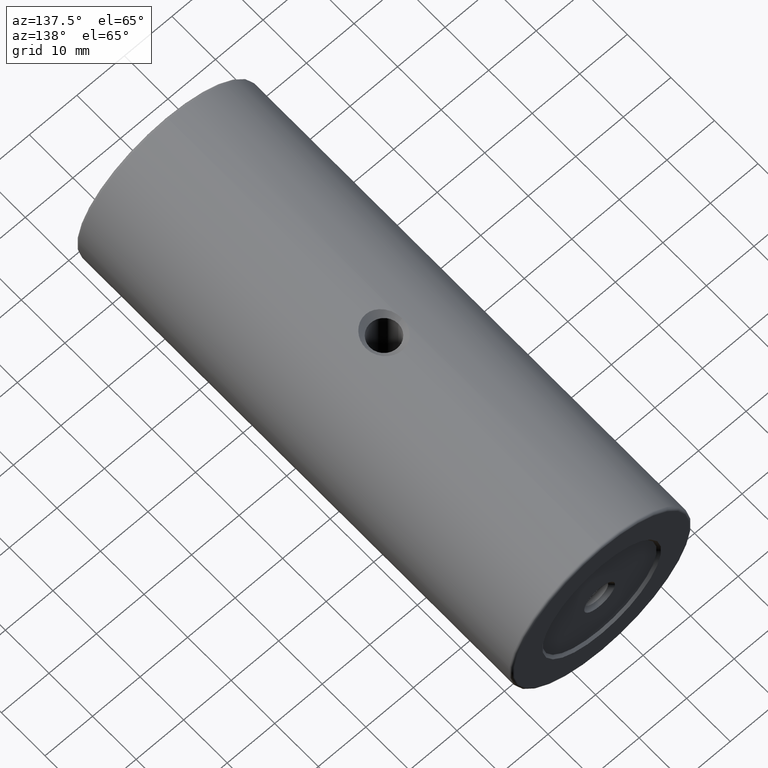
[diagram: clean part render]
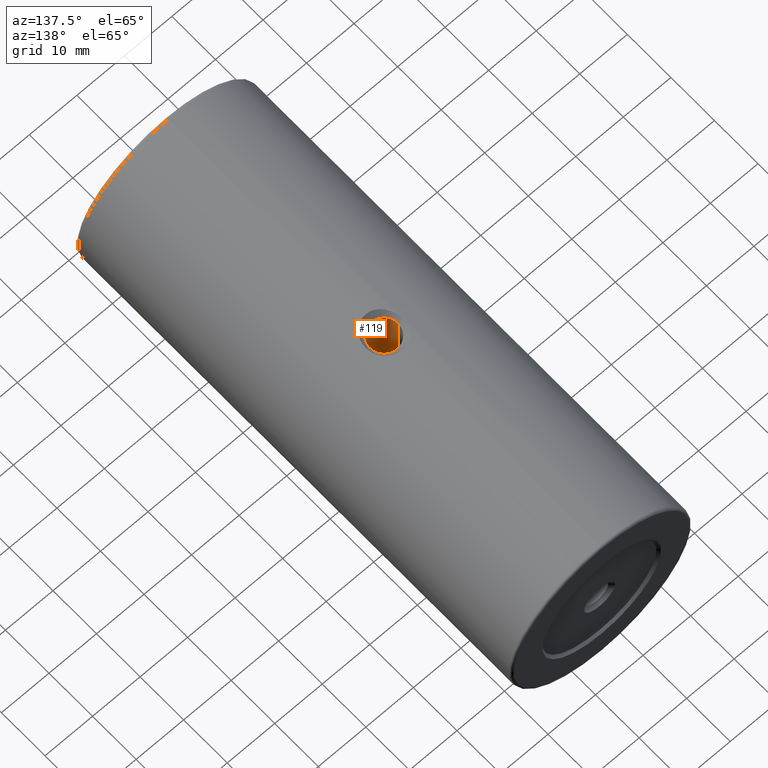
[diagram: same view with one face highlighted and labeled with its STEP entity id]
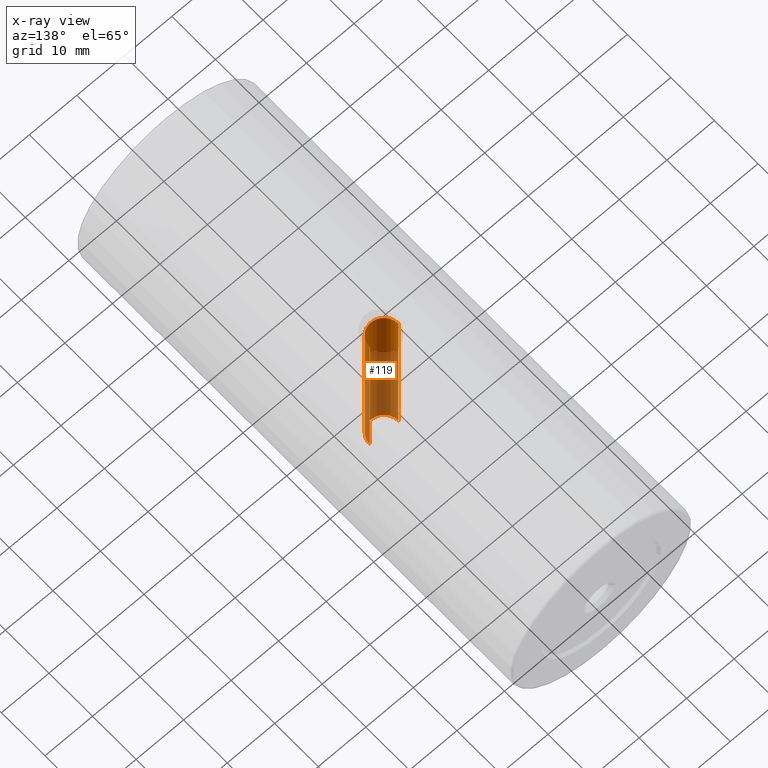
[diagram: x-ray of the same camera — body ghosted, the highlighted face saturated]
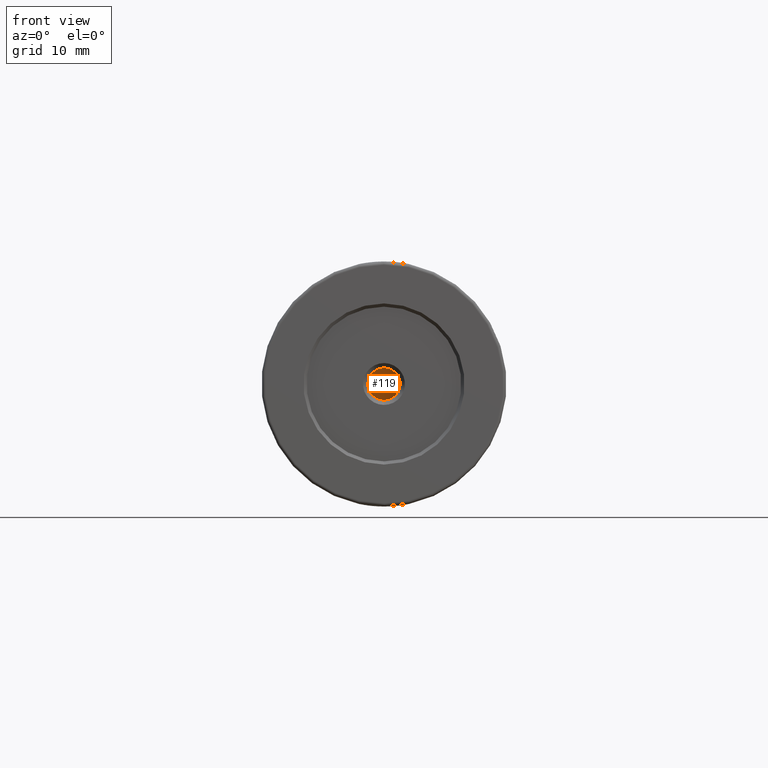
[diagram: same view with one face highlighted and labeled with its STEP entity id]
A machine part, auxiliary view. The second image highlights one B-rep face of the part: STEP entity #119.
The next image is the same camera in x-ray: the body ghosted, the highlighted face saturated — about 66% of this face is hidden behind the body in this view.
A second angle (front view) of the same face is appended — the face is thin or edge-on in the first view.
In plain terms, the highlighted cylindrical surface (edge-blend (fillet) strip) has radius 3 mm, axis along (-0, -0, 1).
Its self-contained STEP definition (entity closure, byte-faithful):
#5 = AXIS2_PLACEMENT_3D ( 'NONE', #973, #990, #198 ) ;
#6 = CARTESIAN_POINT ( 'NONE',  ( -88.22679983354142053, -4.261339991674281791, 381.0000000000000000 ) ) ;
#42 = EDGE_CURVE ( 'NONE', #682, #792, #66, .T. ) ;
#50 = ORIENTED_EDGE ( 'NONE', *, *, #42, .F. ) ;
#51 = EDGE_CURVE ( 'NONE', #792, #568, #451, .T. ) ;
#66 = LINE ( 'NONE', #613, #801 ) ;
#119 = ADVANCED_FACE ( 'NONE', ( #631 ), #939, .F. ) ;
#147 = CARTESIAN_POINT ( 'NONE',  ( -88.22679983354142053, -4.261339991674283567, 417.8000000000000114 ) ) ;
#168 = EDGE_CURVE ( 'NONE', #271, #568, #407, .T. ) ;
#186 = CIRCLE ( 'NONE', #5, 3.000000000000002665 ) ;
#198 = DIRECTION ( 'NONE',  ( -1.000000000000000000, 0.0000000000000000000, 0.0000000000000000000 ) ) ;
#246 = DIRECTION ( 'NONE',  ( 1.000000000000000000, 0.0000000000000000000, 0.0000000000000000000 ) ) ;
#258 = DIRECTION ( 'NONE',  ( -0.0000000000000000000, -0.0000000000000000000, 1.000000000000000000 ) ) ;
#271 = VERTEX_POINT ( 'NONE', #629 ) ;
#385 = DIRECTION ( 'NONE',  ( 1.000000000000000000, 0.0000000000000000000, 0.0000000000000000000 ) ) ;
#386 = VECTOR ( 'NONE', #258, 1000.000000000000000 ) ;
#407 = LINE ( 'NONE', #6, #386 ) ;
#414 = DIRECTION ( 'NONE',  ( -0.0000000000000000000, -0.0000000000000000000, 1.000000000000000000 ) ) ;
#451 = CIRCLE ( 'NONE', #659, 3.000000000000002665 ) ;
#459 = EDGE_CURVE ( 'NONE', #682, #271, #186, .T. ) ;
#513 = ORIENTED_EDGE ( 'NONE', *, *, #51, .F. ) ;
#568 = VERTEX_POINT ( 'NONE', #147 ) ;
#593 = ORIENTED_EDGE ( 'NONE', *, *, #459, .T. ) ;
#613 = CARTESIAN_POINT ( 'NONE',  ( -82.22679983354142053, -4.261339991674281791, 381.0000000000000000 ) ) ;
#629 = CARTESIAN_POINT ( 'NONE',  ( -88.22679983354142053, -4.261339991674281791, 382.2000000000000455 ) ) ;
#631 = FACE_OUTER_BOUND ( 'NONE', #796, .T. ) ;
#659 = AXIS2_PLACEMENT_3D ( 'NONE', #928, #1011, #385 ) ;
#682 = VERTEX_POINT ( 'NONE', #944 ) ;
#724 = ORIENTED_EDGE ( 'NONE', *, *, #168, .T. ) ;
#768 = DIRECTION ( 'NONE',  ( -0.0000000000000000000, -0.0000000000000000000, 1.000000000000000000 ) ) ;
#792 = VERTEX_POINT ( 'NONE', #960 ) ;
#796 = EDGE_LOOP ( 'NONE', ( #593, #724, #513, #50 ) ) ;
#801 = VECTOR ( 'NONE', #768, 1000.000000000000000 ) ;
#906 = AXIS2_PLACEMENT_3D ( 'NONE', #1002, #414, #246 ) ;
#928 = CARTESIAN_POINT ( 'NONE',  ( -85.22679983354142053, -4.261339991674283567, 417.8000000000000114 ) ) ;
#939 = CYLINDRICAL_SURFACE ( 'NONE', #906, 3.000000000000002665 ) ;
#944 = CARTESIAN_POINT ( 'NONE',  ( -82.22679983354142053, -4.261339991674281791, 382.2000000000000455 ) ) ;
#960 = CARTESIAN_POINT ( 'NONE',  ( -82.22679983354142053, -4.261339991674283567, 417.8000000000000114 ) ) ;
#973 = CARTESIAN_POINT ( 'NONE',  ( -85.22679983354142053, -4.261339991674283567, 382.2000000000000455 ) ) ;
#990 = DIRECTION ( 'NONE',  ( -0.0000000000000000000, -0.0000000000000000000, -1.000000000000000000 ) ) ;
#1002 = CARTESIAN_POINT ( 'NONE',  ( -85.22679983354142053, -4.261339991674281791, 381.0000000000000000 ) ) ;
#1011 = DIRECTION ( 'NONE',  ( 0.0000000000000000000, 0.0000000000000000000, -1.000000000000000000 ) ) ;